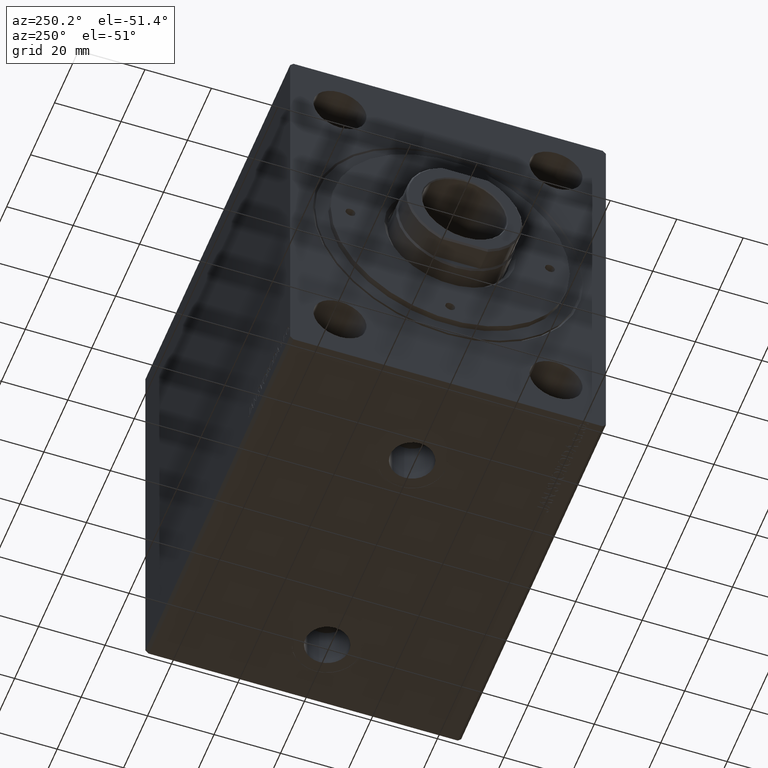
[diagram: clean part render]
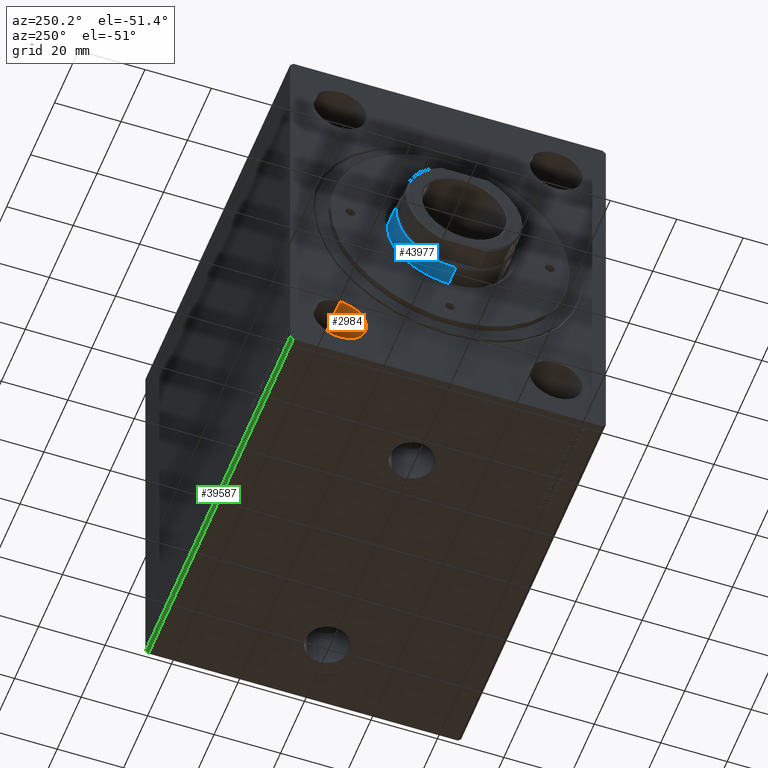
[diagram: same view with three faces highlighted in distinct colors, each labeled with its STEP entity id]
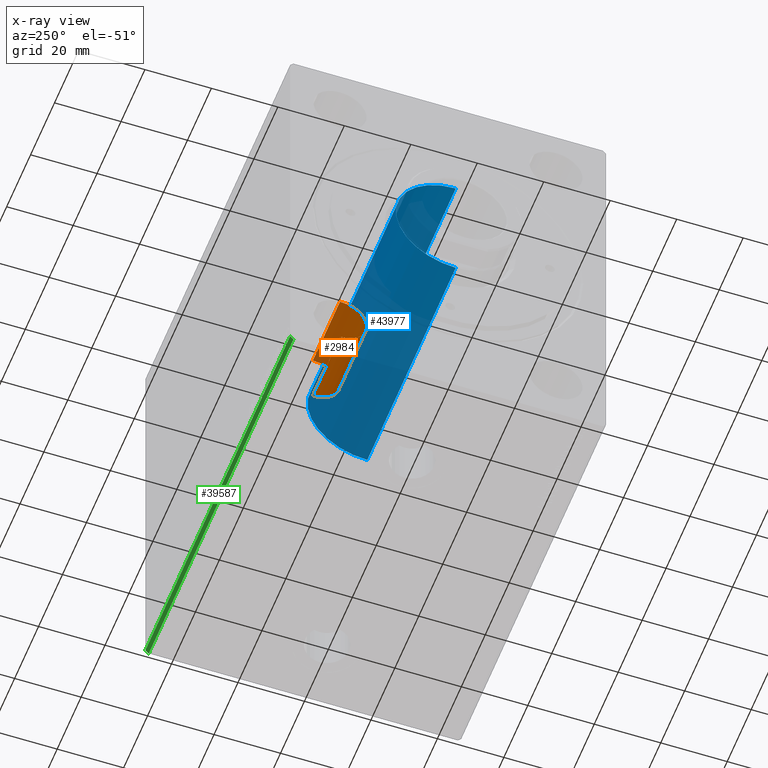
[diagram: x-ray of the same camera — body ghosted, the three highlighted faces saturated]
A machine part, auxiliary view with three faces highlighted in distinct colors.
The next image is the same camera in x-ray (body ghosted, the three faces saturated) — at least one of them is partly hidden behind the body in this view.
Their STEP definitions:

[orange] entity #2984 — the highlighted cylindrical surface (edge-blend (fillet) strip) has radius 8 mm, axis along (-1, -0, -0).
#1753 = EDGE_LOOP ( 'NONE', ( #19689, #32090, #42137, #16475 ) ) ;
#2834 = DIRECTION ( 'NONE',  ( -1.000000000000000000, -0.000000000000000000, -0.000000000000000000 ) ) ;
#2969 = VECTOR ( 'NONE', #2999, 1000.000000000000000 ) ;
#2984 = ADVANCED_FACE ( 'NONE', ( #12714 ), #39618, .F. ) ;
#2999 = DIRECTION ( 'NONE',  ( -1.000000000000000000, -0.000000000000000000, -0.000000000000000000 ) ) ;
#3288 = AXIS2_PLACEMENT_3D ( 'NONE', #39840, #9369, #22955 ) ;
#3674 = DIRECTION ( 'NONE',  ( -1.000000000000000000, -0.000000000000000000, -0.000000000000000000 ) ) ;
#5526 = LINE ( 'NONE', #12422, #33553 ) ;
#6728 = CIRCLE ( 'NONE', #33706, 7.999999999999992895 ) ;
#8393 = CARTESIAN_POINT ( 'NONE',  ( 22.67000000000000171, 32.50000000000000000, -39.50000000000000711 ) ) ;
#9369 = DIRECTION ( 'NONE',  ( -1.000000000000000000, -0.000000000000000000, -0.000000000000000000 ) ) ;
#10161 = VERTEX_POINT ( 'NONE', #28598 ) ;
#12422 = CARTESIAN_POINT ( 'NONE',  ( 0.000000000000000000, 32.50000000000000000, -55.49999999999999289 ) ) ;
#12714 = FACE_OUTER_BOUND ( 'NONE', #1753, .T. ) ;
#14083 = CARTESIAN_POINT ( 'NONE',  ( 4.898587196589409870E-16, 32.50000000000000000, -39.50000000000000711 ) ) ;
#14898 = CARTESIAN_POINT ( 'NONE',  ( 4.898587196589409870E-16, 32.50000000000000000, -55.49999999999999289 ) ) ;
#16475 = ORIENTED_EDGE ( 'NONE', *, *, #31123, .F. ) ;
#17269 = CARTESIAN_POINT ( 'NONE',  ( 0.000000000000000000, 32.50000000000000000, -39.50000000000000711 ) ) ;
#17275 = DIRECTION ( 'NONE',  ( 0.000000000000000000, 0.000000000000000000, 1.000000000000000000 ) ) ;
#19689 = ORIENTED_EDGE ( 'NONE', *, *, #42884, .F. ) ;
#20586 = EDGE_CURVE ( 'NONE', #35410, #30146, #31113, .T. ) ;
#20603 = CARTESIAN_POINT ( 'NONE',  ( 22.67000000000000171, 32.50000000000000000, -47.50000000000000000 ) ) ;
#20871 = DIRECTION ( 'NONE',  ( -1.000000000000000000, -0.000000000000000000, -0.000000000000000000 ) ) ;
#22955 = DIRECTION ( 'NONE',  ( 0.000000000000000000, 0.000000000000000000, 1.000000000000000000 ) ) ;
#28598 = CARTESIAN_POINT ( 'NONE',  ( 22.67000000000000171, 32.50000000000000000, -55.49999999999999289 ) ) ;
#30146 = VERTEX_POINT ( 'NONE', #14083 ) ;
#31067 = CARTESIAN_POINT ( 'NONE',  ( 4.898587196589409870E-16, 32.50000000000000000, -47.50000000000000000 ) ) ;
#31113 = CIRCLE ( 'NONE', #42495, 7.999999999999992895 ) ;
#31123 = EDGE_CURVE ( 'NONE', #36779, #30146, #37262, .T. ) ;
#32090 = ORIENTED_EDGE ( 'NONE', *, *, #36423, .T. ) ;
#33553 = VECTOR ( 'NONE', #2834, 1000.000000000000000 ) ;
#33706 = AXIS2_PLACEMENT_3D ( 'NONE', #20603, #3674, #17275 ) ;
#34424 = DIRECTION ( 'NONE',  ( 0.000000000000000000, 0.000000000000000000, 1.000000000000000000 ) ) ;
#35410 = VERTEX_POINT ( 'NONE', #14898 ) ;
#36423 = EDGE_CURVE ( 'NONE', #10161, #35410, #5526, .T. ) ;
#36779 = VERTEX_POINT ( 'NONE', #8393 ) ;
#37262 = LINE ( 'NONE', #17269, #2969 ) ;
#39618 = CYLINDRICAL_SURFACE ( 'NONE', #3288, 7.999999999999992895 ) ;
#39840 = CARTESIAN_POINT ( 'NONE',  ( 0.000000000000000000, 32.50000000000000000, -47.50000000000000000 ) ) ;
#42137 = ORIENTED_EDGE ( 'NONE', *, *, #20586, .T. ) ;
#42495 = AXIS2_PLACEMENT_3D ( 'NONE', #31067, #20871, #34424 ) ;
#42884 = EDGE_CURVE ( 'NONE', #10161, #36779, #6728, .T. ) ;

[blue] entity #43977 — the highlighted cylindrical surface (partial cylindrical patch) has radius 18 mm, axis along (1, -0, -0).
#322 = EDGE_CURVE ( 'NONE', #27719, #2645, #29797, .T. ) ;
#1104 = ORIENTED_EDGE ( 'NONE', *, *, #29905, .T. ) ;
#2645 = VERTEX_POINT ( 'NONE', #29662 ) ;
#2997 = EDGE_CURVE ( 'NONE', #10759, #34376, #28856, .T. ) ;
#3933 = LINE ( 'NONE', #13749, #31332 ) ;
#4234 = DIRECTION ( 'NONE',  ( 1.000000000000000000, 0.000000000000000000, 0.000000000000000000 ) ) ;
#4287 = DIRECTION ( 'NONE',  ( -0.000000000000000000, -0.000000000000000000, -1.000000000000000000 ) ) ;
#7637 = FACE_OUTER_BOUND ( 'NONE', #35088, .T. ) ;
#9134 = VECTOR ( 'NONE', #43255, 1000.000000000000000 ) ;
#10258 = DIRECTION ( 'NONE',  ( 0.000000000000000000, 0.000000000000000000, -1.000000000000000000 ) ) ;
#10759 = VERTEX_POINT ( 'NONE', #20717 ) ;
#10797 = CARTESIAN_POINT ( 'NONE',  ( 0.000000000000000000, 0.000000000000000000, 35.00000000000000000 ) ) ;
#13381 = CARTESIAN_POINT ( 'NONE',  ( 0.000000000000000000, 0.000000000000000000, 108.9999999999999574 ) ) ;
#13749 = CARTESIAN_POINT ( 'NONE',  ( 18.00000000000000000, 2.204364238465235428E-15, 109.5000000000000000 ) ) ;
#14202 = EDGE_CURVE ( 'NONE', #10759, #2645, #39470, .T. ) ;
#14768 = ORIENTED_EDGE ( 'NONE', *, *, #322, .T. ) ;
#16936 = CARTESIAN_POINT ( 'NONE',  ( 18.00000000000000000, 2.204364238465235428E-15, 35.00000000000000000 ) ) ;
#17317 = DIRECTION ( 'NONE',  ( -0.000000000000000000, -0.000000000000000000, -1.000000000000000000 ) ) ;
#17841 = CARTESIAN_POINT ( 'NONE',  ( 18.00000000000000000, 2.204364238465235428E-15, 108.9999999999999574 ) ) ;
#17881 = DIRECTION ( 'NONE',  ( -1.000000000000000000, 0.000000000000000000, 0.000000000000000000 ) ) ;
#20717 = CARTESIAN_POINT ( 'NONE',  ( -18.00000000000000000, 0.000000000000000000, 108.9999999999999574 ) ) ;
#21214 = CYLINDRICAL_SURFACE ( 'NONE', #34458, 18.00000000000000000 ) ;
#24813 = DIRECTION ( 'NONE',  ( 0.000000000000000000, 0.000000000000000000, 1.000000000000000000 ) ) ;
#27719 = VERTEX_POINT ( 'NONE', #16936 ) ;
#28856 = CIRCLE ( 'NONE', #41660, 18.00000000000000000 ) ;
#29662 = CARTESIAN_POINT ( 'NONE',  ( -18.00000000000000000, 0.000000000000000000, 35.00000000000000000 ) ) ;
#29675 = CARTESIAN_POINT ( 'NONE',  ( -18.00000000000000000, 0.000000000000000000, 109.5000000000000000 ) ) ;
#29797 = CIRCLE ( 'NONE', #42607, 18.00000000000000000 ) ;
#29905 = EDGE_CURVE ( 'NONE', #34376, #27719, #3933, .T. ) ;
#31332 = VECTOR ( 'NONE', #17317, 1000.000000000000000 ) ;
#31463 = DIRECTION ( 'NONE',  ( 1.000000000000000000, 0.000000000000000000, 0.000000000000000000 ) ) ;
#34376 = VERTEX_POINT ( 'NONE', #17841 ) ;
#34458 = AXIS2_PLACEMENT_3D ( 'NONE', #34773, #4287, #17881 ) ;
#34773 = CARTESIAN_POINT ( 'NONE',  ( 0.000000000000000000, 0.000000000000000000, 109.5000000000000000 ) ) ;
#35088 = EDGE_LOOP ( 'NONE', ( #42200, #1104, #14768, #37703 ) ) ;
#37703 = ORIENTED_EDGE ( 'NONE', *, *, #14202, .F. ) ;
#39470 = LINE ( 'NONE', #29675, #9134 ) ;
#41660 = AXIS2_PLACEMENT_3D ( 'NONE', #13381, #10258, #4234 ) ;
#42200 = ORIENTED_EDGE ( 'NONE', *, *, #2997, .T. ) ;
#42607 = AXIS2_PLACEMENT_3D ( 'NONE', #10797, #24813, #31463 ) ;
#43255 = DIRECTION ( 'NONE',  ( -0.000000000000000000, -0.000000000000000000, -1.000000000000000000 ) ) ;
#43977 = ADVANCED_FACE ( 'NONE', ( #7637 ), #21214, .T. ) ;

[green] entity #39587 — the highlighted planar face has unit normal (0, -0.7071, 0.7071).
#195 = LINE ( 'NONE', #17785, #43208 ) ;
#1164 = CARTESIAN_POINT ( 'NONE',  ( 121.0000000000000000, 46.50000000000000000, -62.50000000000000000 ) ) ;
#1350 = PLANE ( 'NONE',  #20880 ) ;
#1526 = EDGE_CURVE ( 'NONE', #35300, #3760, #16838, .T. ) ;
#1826 = CARTESIAN_POINT ( 'NONE',  ( 0.000000000000000000, 46.50000000000000000, -62.50000000000000000 ) ) ;
#3760 = VERTEX_POINT ( 'NONE', #1826 ) ;
#4694 = VECTOR ( 'NONE', #6367, 1000.000000000000000 ) ;
#6367 = DIRECTION ( 'NONE',  ( -1.000000000000000000, -0.000000000000000000, -0.000000000000000000 ) ) ;
#7898 = CARTESIAN_POINT ( 'NONE',  ( 0.000000000000000000, 47.50000000000001421, -61.50000000000001421 ) ) ;
#8819 = EDGE_CURVE ( 'NONE', #31360, #18053, #195, .T. ) ;
#9274 = ORIENTED_EDGE ( 'NONE', *, *, #21687, .T. ) ;
#11195 = ORIENTED_EDGE ( 'NONE', *, *, #32559, .F. ) ;
#14949 = DIRECTION ( 'NONE',  ( 0.000000000000000000, -0.7071067811865573427, -0.7071067811865378028 ) ) ;
#16483 = CARTESIAN_POINT ( 'NONE',  ( 121.0000000000000000, 46.50000000000000000, -62.50000000000000000 ) ) ;
#16838 = LINE ( 'NONE', #1164, #4694 ) ;
#17785 = CARTESIAN_POINT ( 'NONE',  ( 121.0000000000000000, 47.50000000000001421, -61.50000000000001421 ) ) ;
#18053 = VERTEX_POINT ( 'NONE', #7898 ) ;
#18496 = DIRECTION ( 'NONE',  ( 0.000000000000000000, -0.7071067811865378028, 0.7071067811865573427 ) ) ;
#19721 = ORIENTED_EDGE ( 'NONE', *, *, #1526, .T. ) ;
#20880 = AXIS2_PLACEMENT_3D ( 'NONE', #31821, #18496, #14949 ) ;
#21687 = EDGE_CURVE ( 'NONE', #3760, #18053, #39742, .T. ) ;
#22861 = CARTESIAN_POINT ( 'NONE',  ( 121.0000000000000000, 46.50000000000000000, -62.50000000000000000 ) ) ;
#24011 = ORIENTED_EDGE ( 'NONE', *, *, #8819, .F. ) ;
#24943 = FACE_OUTER_BOUND ( 'NONE', #25647, .T. ) ;
#25647 = EDGE_LOOP ( 'NONE', ( #9274, #24011, #11195, #19721 ) ) ;
#26837 = DIRECTION ( 'NONE',  ( 0.000000000000000000, 0.7071067811865574537, 0.7071067811865376918 ) ) ;
#27121 = DIRECTION ( 'NONE',  ( -1.000000000000000000, -0.000000000000000000, -0.000000000000000000 ) ) ;
#27289 = CARTESIAN_POINT ( 'NONE',  ( 0.000000000000000000, 46.50000000000000000, -62.50000000000000000 ) ) ;
#30733 = VECTOR ( 'NONE', #33070, 999.9999999999998863 ) ;
#31140 = VECTOR ( 'NONE', #26837, 999.9999999999998863 ) ;
#31360 = VERTEX_POINT ( 'NONE', #36100 ) ;
#31821 = CARTESIAN_POINT ( 'NONE',  ( 121.0000000000000000, 46.50000000000000000, -62.50000000000000000 ) ) ;
#32559 = EDGE_CURVE ( 'NONE', #35300, #31360, #43531, .T. ) ;
#33070 = DIRECTION ( 'NONE',  ( 0.000000000000000000, 0.7071067811865574537, 0.7071067811865376918 ) ) ;
#35300 = VERTEX_POINT ( 'NONE', #16483 ) ;
#36100 = CARTESIAN_POINT ( 'NONE',  ( 121.0000000000000000, 47.50000000000001421, -61.50000000000001421 ) ) ;
#39587 = ADVANCED_FACE ( 'NONE', ( #24943 ), #1350, .F. ) ;
#39742 = LINE ( 'NONE', #27289, #31140 ) ;
#43208 = VECTOR ( 'NONE', #27121, 1000.000000000000000 ) ;
#43531 = LINE ( 'NONE', #22861, #30733 ) ;